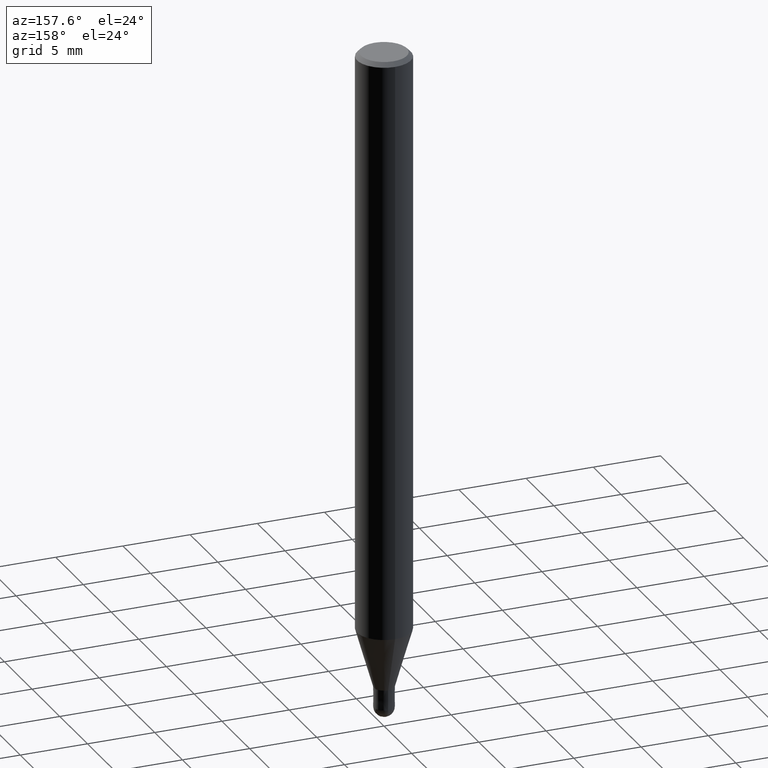
[diagram: clean part render]
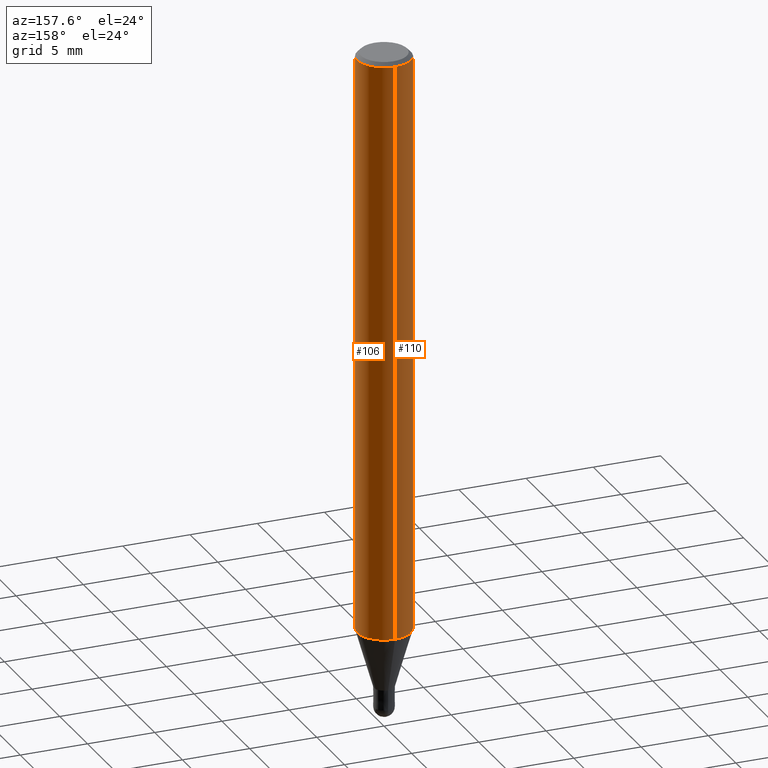
[diagram: same view with one multi-face feature highlighted, each face labeled with its STEP entity id]
A machine part, auxiliary view. The highlighted faces form ONE feature: a constant-radius fillet chain: 2 tangent blend faces with common blend radius 2 mm. The faces share edges in the B-rep.
Their STEP definitions:
[1] entity #110 (Cylinder):
#108=EDGE_CURVE('',#162,#180,#238,.T.);
#110=ADVANCED_FACE('',(#240),#241,.T.);
#114=VERTEX_POINT('',#246);
#116=EDGE_CURVE('',#162,#114,#248,.T.);
#124=EDGE_CURVE('',#132,#180,#256,.T.);
#132=VERTEX_POINT('',#264);
#144=EDGE_CURVE('',#114,#132,#277,.T.);
#162=VERTEX_POINT('',#298);
#180=VERTEX_POINT('',#320);
#238=CIRCLE('',#378,2.0);
#240=FACE_OUTER_BOUND('',#380,.T.);
#241=CYLINDRICAL_SURFACE('',#381,2.0);
#246=CARTESIAN_POINT('',(2.44921270764475E-016,-2.0,-0.299999999999997));
#248=LINE('',#389,#390);
#256=LINE('',#401,#402);
#264=CARTESIAN_POINT('',(0.0,2.0,-0.299999999999997));
#277=CIRCLE('',#428,2.0);
#298=CARTESIAN_POINT('',(2.44921270764475E-016,-2.0,-43.391));
#320=CARTESIAN_POINT('',(0.0,2.0,-43.391));
#378=AXIS2_PLACEMENT_3D('',#534,#535,#536);
#380=EDGE_LOOP('',(#538,#539,#540,#541));
#381=AXIS2_PLACEMENT_3D('',#542,#543,#544);
#389=CARTESIAN_POINT('',(2.44921270764475E-016,-2.0,-21.8455));
#390=VECTOR('',#551,1.0);
#401=CARTESIAN_POINT('',(-2.44921270764475E-016,2.0,-21.8455));
#402=VECTOR('',#557,1.0);
#428=AXIS2_PLACEMENT_3D('',#582,#583,#584);
#534=CARTESIAN_POINT('',(0.0,0.0,-43.391));
#535=DIRECTION('',(0.0,0.0,-1.0));
#536=DIRECTION('',(0.0,1.0,0.0));
#538=ORIENTED_EDGE('',*,*,#124,.T.);
#539=ORIENTED_EDGE('',*,*,#108,.F.);
#540=ORIENTED_EDGE('',*,*,#116,.T.);
#541=ORIENTED_EDGE('',*,*,#144,.T.);
#542=CARTESIAN_POINT('',(0.0,0.0,-21.8455));
#543=DIRECTION('',(-0.0,-0.0,1.0));
#544=DIRECTION('',(0.0,1.0,0.0));
#551=DIRECTION('',(-0.0,-0.0,1.0));
#557=DIRECTION('',(0.0,0.0,-1.0));
#582=CARTESIAN_POINT('',(0.0,0.0,-0.299999999999997));
#583=DIRECTION('',(0.0,0.0,-1.0));
#584=DIRECTION('',(0.0,1.0,0.0));
[2] entity #106 (Cylinder):
#92=EDGE_CURVE('',#132,#114,#220,.T.);
#94=EDGE_CURVE('',#180,#162,#222,.T.);
#106=ADVANCED_FACE('',(#235),#236,.T.);
#114=VERTEX_POINT('',#246);
#116=EDGE_CURVE('',#162,#114,#248,.T.);
#124=EDGE_CURVE('',#132,#180,#256,.T.);
#132=VERTEX_POINT('',#264);
#162=VERTEX_POINT('',#298);
#180=VERTEX_POINT('',#320);
#220=CIRCLE('',#353,2.0);
#222=CIRCLE('',#356,2.0);
#235=FACE_OUTER_BOUND('',#374,.T.);
#236=CYLINDRICAL_SURFACE('',#375,2.0);
#246=CARTESIAN_POINT('',(2.44921270764475E-016,-2.0,-0.299999999999997));
#248=LINE('',#389,#390);
#256=LINE('',#401,#402);
#264=CARTESIAN_POINT('',(0.0,2.0,-0.299999999999997));
#298=CARTESIAN_POINT('',(2.44921270764475E-016,-2.0,-43.391));
#320=CARTESIAN_POINT('',(0.0,2.0,-43.391));
#353=AXIS2_PLACEMENT_3D('',#507,#508,#509);
#356=AXIS2_PLACEMENT_3D('',#510,#511,#512);
#374=EDGE_LOOP('',(#527,#528,#529,#530));
#375=AXIS2_PLACEMENT_3D('',#531,#532,#533);
#389=CARTESIAN_POINT('',(2.44921270764475E-016,-2.0,-21.8455));
#390=VECTOR('',#551,1.0);
#401=CARTESIAN_POINT('',(-2.44921270764475E-016,2.0,-21.8455));
#402=VECTOR('',#557,1.0);
#507=CARTESIAN_POINT('',(0.0,0.0,-0.299999999999997));
#508=DIRECTION('',(0.0,0.0,-1.0));
#509=DIRECTION('',(0.0,1.0,0.0));
#510=CARTESIAN_POINT('',(0.0,0.0,-43.391));
#511=DIRECTION('',(0.0,0.0,-1.0));
#512=DIRECTION('',(0.0,1.0,0.0));
#527=ORIENTED_EDGE('',*,*,#124,.F.);
#528=ORIENTED_EDGE('',*,*,#92,.T.);
#529=ORIENTED_EDGE('',*,*,#116,.F.);
#530=ORIENTED_EDGE('',*,*,#94,.F.);
#531=CARTESIAN_POINT('',(0.0,0.0,-21.8455));
#532=DIRECTION('',(-0.0,-0.0,1.0));
#533=DIRECTION('',(0.0,1.0,0.0));
#551=DIRECTION('',(-0.0,-0.0,1.0));
#557=DIRECTION('',(0.0,0.0,-1.0));